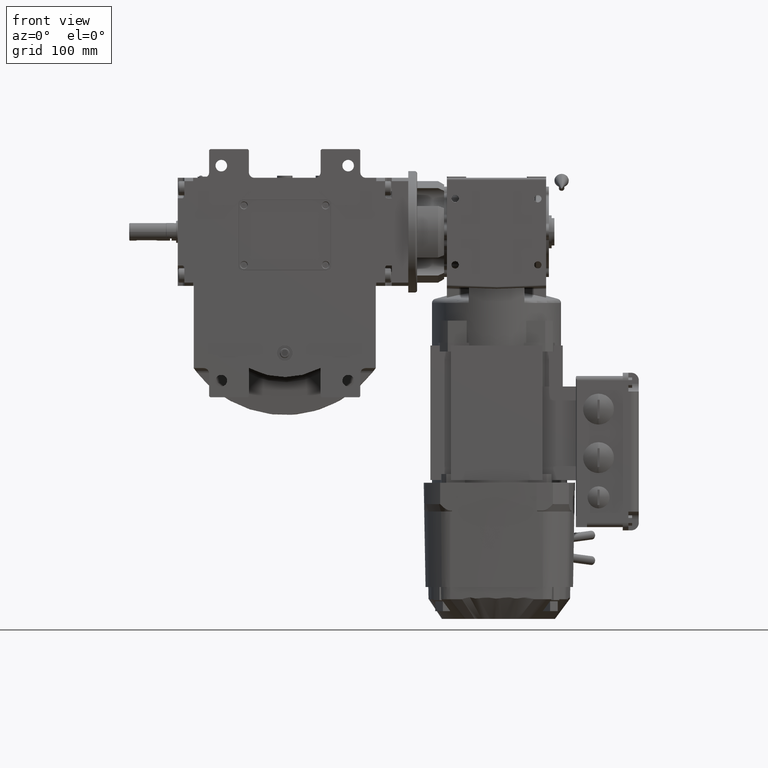
[diagram: clean part render]
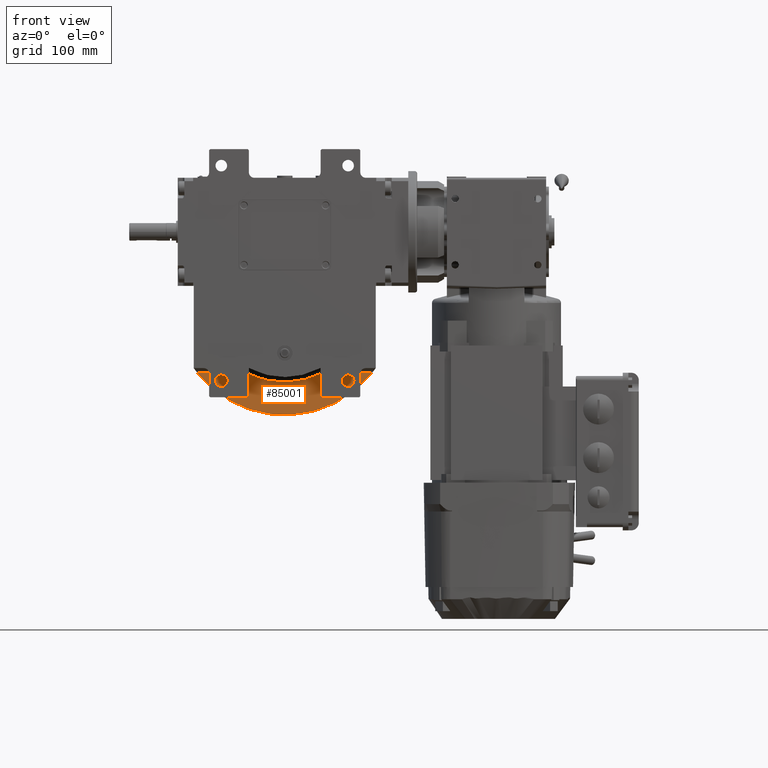
[diagram: same view with one face highlighted and labeled with its STEP entity id]
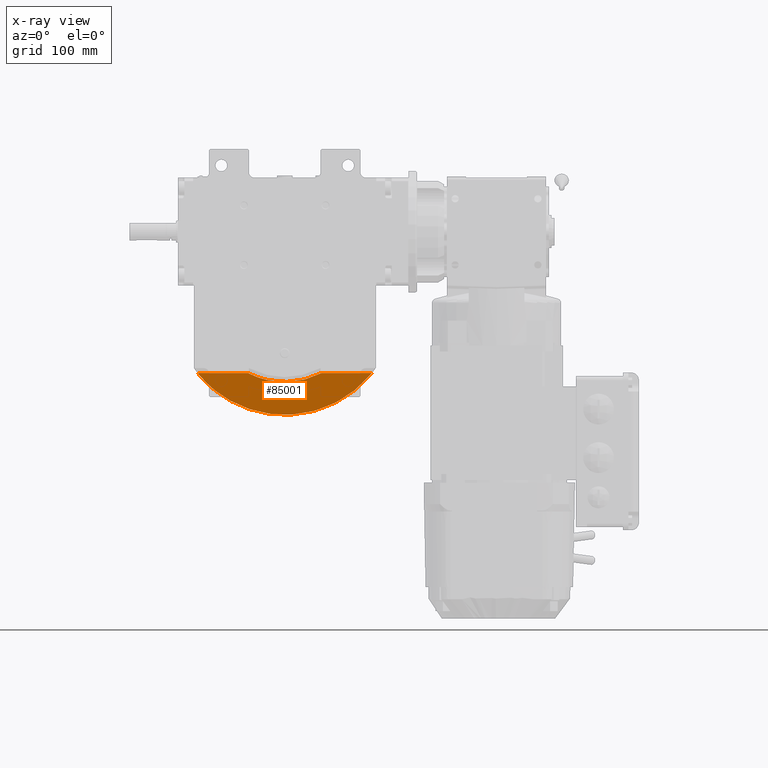
[diagram: x-ray of the same camera — body ghosted, the highlighted face saturated]
A machine part, front view. The second image highlights one B-rep face of the part: STEP entity #85001.
The next image is the same camera in x-ray: the body ghosted, the highlighted face saturated — about 0% of this face is hidden behind the body in this view.
In plain terms, the highlighted planar face has unit normal (0, -0.9962, -0.0872).
Its self-contained STEP definition (entity closure, byte-faithful):
#282 = ORIENTED_EDGE ( 'NONE', *, *, #8826, .F. ) ;
#8826 = EDGE_CURVE ( 'NONE', #18123, #82601, #91272, .T. ) ;
#12595 = CARTESIAN_POINT ( 'NONE',  ( -79.04714209825419857, 21.89931762037159757, -63.06422128626171286 ) ) ;
#18123 = VERTEX_POINT ( 'NONE', #32788 ) ;
#21231 = EDGE_CURVE ( 'NONE', #82565, #82601, #36483, .T. ) ;
#23815 = EDGE_LOOP ( 'NONE', ( #282, #24207, #40529, #81130 ) ) ;
#24207 = ORIENTED_EDGE ( 'NONE', *, *, #47667, .T. ) ;
#29381 = CARTESIAN_POINT ( 'NONE',  ( -33.32502203188484913, 21.89931762037159757, -63.06422128626171286 ) ) ;
#30332 = DIRECTION ( 'NONE',  ( -1.000000000000000000, 0.000000000000000000, 0.000000000000000000 ) ) ;
#32788 = CARTESIAN_POINT ( 'NONE',  ( 79.04714209825419857, 21.89931762037159757, -63.06422128626171286 ) ) ;
#36025 = VECTOR ( 'NONE', #30332, 1000.000000000000000 ) ;
#36130 =( BOUNDED_CURVE ( )  B_SPLINE_CURVE ( 3, ( #89594, #43192, #42685, #29381 ),
 .UNSPECIFIED., .F., .F. ) 
 B_SPLINE_CURVE_WITH_KNOTS ( ( 4, 4 ),
 ( 2.660439210010309807, 3.622819812707135156 ),
 .UNSPECIFIED. ) 
 CURVE ( )  GEOMETRIC_REPRESENTATION_ITEM ( )  RATIONAL_B_SPLINE_CURVE ( ( 1.000000000000000000, 0.9242964254526402357, 0.9242964254526402357, 1.000000000000000000 ) ) 
 REPRESENTATION_ITEM ( '' )  );
#36483 = LINE ( 'NONE', #67602, #36025 ) ;
#36878 = CARTESIAN_POINT ( 'NONE',  ( 33.32502203102834670, 21.89931739189994886, -63.06422130460889974 ) ) ;
#37017 = CARTESIAN_POINT ( 'NONE',  ( 35.11341279681546723, 26.69257427412652461, -117.8513955392394053 ) ) ;
#37524 = CARTESIAN_POINT ( 'NONE',  ( -35.11341279681530381, 26.69257427412653882, -117.8513955392394621 ) ) ;
#37922 = VERTEX_POINT ( 'NONE', #36878 ) ;
#39207 = FACE_OUTER_BOUND ( 'NONE', #23815, .T. ) ;
#40529 = ORIENTED_EDGE ( 'NONE', *, *, #68418, .T. ) ;
#42685 = CARTESIAN_POINT ( 'NONE',  ( -12.01815504891360398, 22.87264572054066747, -74.18941237894163976 ) ) ;
#43192 = CARTESIAN_POINT ( 'NONE',  ( 12.01816137815721319, 22.87264572054066392, -74.18941237894156870 ) ) ;
#47667 = EDGE_CURVE ( 'NONE', #18123, #37922, #72792, .T. ) ;
#47860 = PLANE ( 'NONE',  #49595 ) ;
#48367 = VECTOR ( 'NONE', #79476, 1000.000000000000000 ) ;
#49595 = AXIS2_PLACEMENT_3D ( 'NONE', #70317, #70814, #63651 ) ;
#63651 = DIRECTION ( 'NONE',  ( 1.000000000000000000, 0.000000000000000000, 0.000000000000000000 ) ) ;
#65666 = CARTESIAN_POINT ( 'NONE',  ( -33.32502203188484913, 21.89931762037159757, -63.06422128626171286 ) ) ;
#67602 = CARTESIAN_POINT ( 'NONE',  ( -33.32502203188484913, 21.89931762037159757, -63.06422128626171286 ) ) ;
#68418 = EDGE_CURVE ( 'NONE', #37922, #82565, #36130, .T. ) ;
#70317 = CARTESIAN_POINT ( 'NONE',  ( 33.32502203188470702, 21.50000000000000000, -58.50000000000000000 ) ) ;
#70814 = DIRECTION ( 'NONE',  ( 0.000000000000000000, -0.9961946980917455452, -0.08715574274765815199 ) ) ;
#72792 = LINE ( 'NONE', #79979, #48367 ) ;
#79476 = DIRECTION ( 'NONE',  ( -1.000000000000000000, 0.000000000000000000, -1.554045907601589977E-16 ) ) ;
#79979 = CARTESIAN_POINT ( 'NONE',  ( 79.04714209825419857, 21.89931762037159757, -63.06422128626171286 ) ) ;
#81130 = ORIENTED_EDGE ( 'NONE', *, *, #21231, .T. ) ;
#82565 = VERTEX_POINT ( 'NONE', #65666 ) ;
#82601 = VERTEX_POINT ( 'NONE', #12595 ) ;
#83478 = CARTESIAN_POINT ( 'NONE',  ( -79.04714209825419857, 21.89931762037159757, -63.06422128626171286 ) ) ;
#84475 = CARTESIAN_POINT ( 'NONE',  ( 79.04714209825419857, 21.89931762037159757, -63.06422128626171286 ) ) ;
#85001 = ADVANCED_FACE ( 'NONE', ( #39207 ), #47860, .T. ) ;
#89594 = CARTESIAN_POINT ( 'NONE',  ( 33.32502203102834670, 21.89931739189994886, -63.06422130460889974 ) ) ;
#91272 =( BOUNDED_CURVE ( )  B_SPLINE_CURVE ( 3, ( #84475, #37017, #37524, #83478 ),
 .UNSPECIFIED., .F., .F. ) 
 B_SPLINE_CURVE_WITH_KNOTS ( ( 4, 4 ),
 ( 2.246693557745409908, 4.036491749434144793 ),
 .UNSPECIFIED. ) 
 CURVE ( )  GEOMETRIC_REPRESENTATION_ITEM ( )  RATIONAL_B_SPLINE_CURVE ( ( 1.000000000000000000, 0.7503983596967388481, 0.7503983596967388481, 1.000000000000000000 ) ) 
 REPRESENTATION_ITEM ( '' )  );